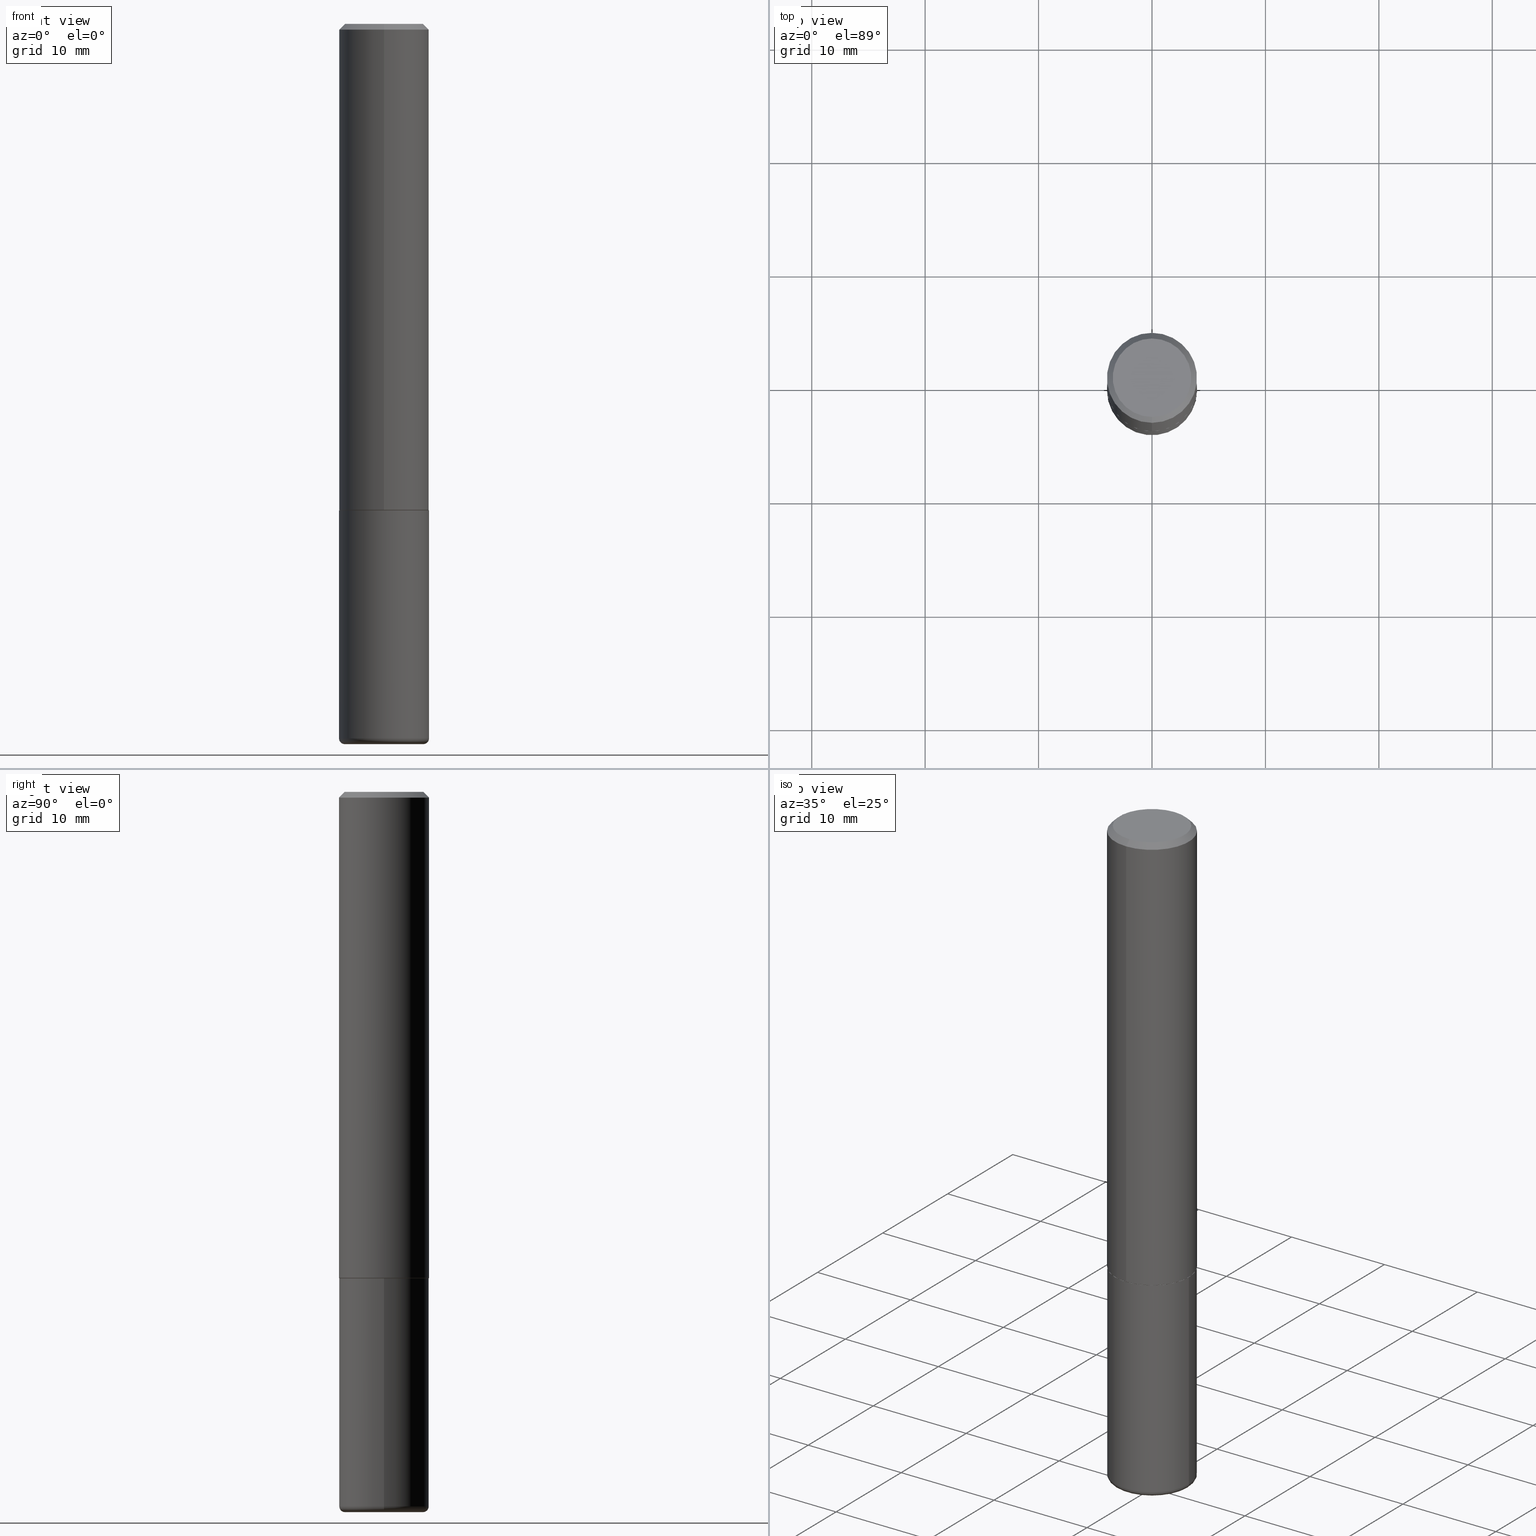
[diagram: canonical four-view strip — front | top / right | iso, engineering-drawing reading convention]
A machine part, canonical four-view strip (front | top / right | iso — engineering-drawing reading convention). The complete STEP part file that produces these views, byte-faithful:
ISO-10303-21;
HEADER;
FILE_DESCRIPTION (( 'STEP AP203' ),
    '1' );
FILE_NAME ('38234.STEP',
    '2024-03-02T19:08:51',
    ( '' ),
    ( '' ),
    'SwSTEP 2.0',
    'SolidWorks 2023',
    '' );
FILE_SCHEMA (( 'CONFIG_CONTROL_DESIGN' ));
ENDSEC;

DATA;
#1 = FACE_OUTER_BOUND ( 'NONE', #315, .T. ) ;
#2 = EDGE_LOOP ( 'NONE', ( #241, #69, #174, #156 ) ) ;
#3 = EDGE_CURVE ( 'NONE', #94, #356, #109, .T. ) ;
#4 = CIRCLE ( 'NONE', #16, 0.1552499999999999991 ) ;
#5 = APPROVAL_PERSON_ORGANIZATION ( #172, #197, #403 ) ;
#6 = CARTESIAN_POINT ( 'NONE',  ( 0.000000000000000000, 0.000000000000000000, 0.000000000000000000 ) ) ;
#7 = CARTESIAN_POINT ( 'NONE',  ( 1.250383974604437494E-45, -1.785836401521438243E-31, -5.113950281278734949E-17 ) ) ;
#8 = PERSON_AND_ORGANIZATION ( #351, #184 ) ;
#9 = DIRECTION ( 'NONE',  ( -2.445045230849958565E-29, 3.492087922831532098E-15, 1.000000000000000000 ) ) ;
#10 = CARTESIAN_POINT ( 'NONE',  ( 4.127951344840510809E-29, -5.893620499967230340E-15, -1.688000000000000167 ) ) ;
#11 = ORIENTED_EDGE ( 'NONE', *, *, #188, .T. ) ;
#12 = ADVANCED_FACE ( 'NONE', ( #300 ), #165, .T. ) ;
#13 = CARTESIAN_POINT ( 'NONE',  ( 4.890090461699924977E-31, -6.984175845663074797E-17, -0.02000000000000003511 ) ) ;
#14 = CARTESIAN_POINT ( 'NONE',  ( 1.250383974604437494E-45, -1.785836401521438243E-31, -5.113950281278734949E-17 ) ) ;
#15 = ORIENTED_EDGE ( 'NONE', *, *, #201, .F. ) ;
#16 = AXIS2_PLACEMENT_3D ( 'NONE', #229, #100, #228 ) ;
#17 = DIRECTION ( 'NONE',  ( -6.982962677686265922E-15, -1.000000000000000000, 3.496765431890251792E-15 ) ) ;
#18 = DIRECTION ( 'NONE',  ( -2.445045230849958565E-29, 3.492087922831531704E-15, 1.000000000000000000 ) ) ;
#19 = MANIFOLD_SOLID_BREP ( 'Body-Move/Copy2[2]', #402 ) ;
#20 = ORIENTED_EDGE ( 'NONE', *, *, #313, .F. ) ;
#21 = DESIGN_CONTEXT ( 'detailed design', #251, 'design' ) ;
#22 = DIRECTION ( 'NONE',  ( 2.438088387897960049E-29, -3.491481338843145188E-15, -1.000000000000000000 ) ) ;
#23 = DIRECTION ( 'NONE',  ( 0.000000000000000000, 0.000000000000000000, 1.000000000000000000 ) ) ;
#24 = CARTESIAN_POINT ( 'NONE',  ( -0.1562500000000000833, -7.548650695705845104E-15, -2.480000000000000426 ) ) ;
#25 = FACE_OUTER_BOUND ( 'NONE', #322, .T. ) ;
#26 = EDGE_CURVE ( 'NONE', #134, #170, #325, .T. ) ;
#27 = CC_DESIGN_APPROVAL ( #197, ( #63 ) ) ;
#28 = DIRECTION ( 'NONE',  ( 6.982962677686265133E-15, 1.000000000000000000, -3.496765431890256920E-15 ) ) ;
#29 = EDGE_CURVE ( 'NONE', #343, #134, #378, .T. ) ;
#30 = EDGE_LOOP ( 'NONE', ( #101, #66 ) ) ;
#31 = COORDINATED_UNIVERSAL_TIME_OFFSET ( 5, 0, .BEHIND. ) ;
#32 = DIRECTION ( 'NONE',  ( -2.445045230849958565E-29, 3.492087922831531704E-15, 1.000000000000000000 ) ) ;
#33 = AXIS2_PLACEMENT_3D ( 'NONE', #107, #70, #259 ) ;
#34 = ORIENTED_EDGE ( 'NONE', *, *, #86, .T. ) ;
#35 = PRODUCT_DEFINITION ( 'UNKNOWN', '', #63, #21 ) ;
#36 = PLANE ( 'NONE',  #71 ) ;
#37 = VECTOR ( 'NONE', #339, 39.37007874015748143 ) ;
#38 = APPLICATION_CONTEXT ( 'configuration controlled 3d designs of mechanical parts and assemblies' ) ;
#39 = ADVANCED_FACE ( 'NONE', ( #56 ), #110, .T. ) ;
#40 = VECTOR ( 'NONE', #149, 39.37007874015748143 ) ;
#41 = AXIS2_PLACEMENT_3D ( 'NONE', #14, #124, #375 ) ;
#42 = CALENDAR_DATE ( 2024, 2, 3 ) ;
#43 = CARTESIAN_POINT ( 'NONE',  ( 1.110223024625157132E-15, 0.1562500000000001110, -5.456387379424272725E-16 ) ) ;
#44 = PLANE ( 'NONE',  #278 ) ;
#45 = EDGE_LOOP ( 'NONE', ( #11, #319, #53, #83 ) ) ;
#46 = EDGE_CURVE ( 'NONE', #170, #134, #310, .T. ) ;
#47 = APPLICATION_PROTOCOL_DEFINITION ( 'international standard', 'config_control_design', 1994, #38 ) ;
#48 = CARTESIAN_POINT ( 'NONE',  ( -1.084104955710751547E-15, -0.1552500000000059110, -1.687999999999999501 ) ) ;
#49 = DIRECTION ( 'NONE',  ( 1.000000000000000000, -6.982962677686269077E-15, 0.000000000000000000 ) ) ;
#50 = DIRECTION ( 'NONE',  ( 1.000000000000000000, -6.982962677686262766E-15, 0.000000000000000000 ) ) ;
#51 = EDGE_CURVE ( 'NONE', #354, #94, #130, .T. ) ;
#52 = DIRECTION ( 'NONE',  ( -1.000000000000000000, 6.982962677686265922E-15, -4.876176775795935793E-29 ) ) ;
#53 = ORIENTED_EDGE ( 'NONE', *, *, #51, .F. ) ;
#54 = AXIS2_PLACEMENT_3D ( 'NONE', #335, #304, #17 ) ;
#55 = MECHANICAL_CONTEXT ( 'NONE', #38, 'mechanical' ) ;
#56 = FACE_OUTER_BOUND ( 'NONE', #160, .T. ) ;
#57 = DIRECTION ( 'NONE',  ( -2.445045230849958565E-29, 3.492087922831531704E-15, 1.000000000000000000 ) ) ;
#58 = ORIENTED_EDGE ( 'NONE', *, *, #201, .T. ) ;
#59 = PERSON_AND_ORGANIZATION ( #351, #184 ) ;
#60 = DIRECTION ( 'NONE',  ( -6.982962677686265922E-15, -1.000000000000000000, 3.496765431890251792E-15 ) ) ;
#61 = EDGE_LOOP ( 'NONE', ( #274, #279 ) ) ;
#62 = COORDINATED_UNIVERSAL_TIME_OFFSET ( 5, 0, .BEHIND. ) ;
#63 = PRODUCT_DEFINITION_FORMATION_WITH_SPECIFIED_SOURCE ( 'ANY', '', #357, .NOT_KNOWN. ) ;
#64 =( NAMED_UNIT ( * ) SI_UNIT ( $, .STERADIAN. ) SOLID_ANGLE_UNIT ( ) );
#65 = FACE_OUTER_BOUND ( 'NONE', #377, .T. ) ;
#66 = ORIENTED_EDGE ( 'NONE', *, *, #373, .F. ) ;
#67 = ORIENTED_EDGE ( 'NONE', *, *, #347, .T. ) ;
#68 = FACE_OUTER_BOUND ( 'NONE', #45, .T. ) ;
#69 = ORIENTED_EDGE ( 'NONE', *, *, #26, .T. ) ;
#70 = DIRECTION ( 'NONE',  ( -2.445468806185136597E-29, 3.491481338843145583E-15, 1.000000000000000000 ) ) ;
#71 = AXIS2_PLACEMENT_3D ( 'NONE', #272, #161, #265 ) ;
#72 = CC_DESIGN_PERSON_AND_ORGANIZATION_ASSIGNMENT ( #154, #247, ( #63 ) ) ;
#73 = AXIS2_PLACEMENT_3D ( 'NONE', #93, #393, #28 ) ;
#74 = CIRCLE ( 'NONE', #41, 0.1362500000000000933 ) ;
#75 = PRODUCT_DEFINITION_SHAPE ( 'NONE', 'NONE',  #35 ) ;
#76 = EDGE_CURVE ( 'NONE', #170, #418, #408, .T. ) ;
#77 = CARTESIAN_POINT ( 'NONE',  ( 4.127236349674729842E-29, -5.894644413739625756E-15, -1.688000000000000167 ) ) ;
#78 = ADVANCED_FACE ( 'NONE', ( #168 ), #143, .T. ) ;
#79 = CONICAL_SURFACE ( 'NONE', #121, 0.1562500000000000000, 0.7853981633974468357 ) ;
#80 = LOCAL_TIME ( 14, 8, 51.00000000000000000, #62 ) ;
#81 = LINE ( 'NONE', #48, #289 ) ;
#82 = CARTESIAN_POINT ( 'NONE',  ( 4.127951344840510809E-29, -5.893620499967230340E-15, -1.688000000000000167 ) ) ;
#83 = ORIENTED_EDGE ( 'NONE', *, *, #116, .F. ) ;
#84 = CALENDAR_DATE ( 2024, 2, 3 ) ;
#85 = DIRECTION ( 'NONE',  ( -2.445468806185136597E-29, 3.491481338843145583E-15, 1.000000000000000000 ) ) ;
#86 = EDGE_CURVE ( 'NONE', #354, #205, #404, .T. ) ;
#87 = DIRECTION ( 'NONE',  ( 7.105427357601001859E-15, 1.000000000000000000, -3.491481338843145583E-15 ) ) ;
#88 = VECTOR ( 'NONE', #9, 39.37007874015748143 ) ;
#89 = DIRECTION ( 'NONE',  ( -2.445045230849958565E-29, 3.492087922831531704E-15, 1.000000000000000000 ) ) ;
#90 =( LENGTH_UNIT ( ) NAMED_UNIT ( * ) SI_UNIT ( $, .METRE. ) );
#91 = DIRECTION ( 'NONE',  ( 1.000000000000000000, -6.982962677686266711E-15, 4.876176775795936353E-29 ) ) ;
#92 = CALENDAR_DATE ( 2024, 2, 3 ) ;
#93 = CARTESIAN_POINT ( 'NONE',  ( 4.890090461699924977E-31, -6.984175845663074797E-17, -0.02000000000000003511 ) ) ;
#94 = VERTEX_POINT ( 'NONE', #398 ) ;
#95 =( NAMED_UNIT ( * ) PLANE_ANGLE_UNIT ( ) SI_UNIT ( $, .RADIAN. ) );
#96 = ORIENTED_EDGE ( 'NONE', *, *, #180, .T. ) ;
#97 = ADVANCED_FACE ( 'NONE', ( #214 ), #366, .F. ) ;
#98 = CALENDAR_DATE ( 2024, 2, 3 ) ;
#99 = AXIS2_PLACEMENT_3D ( 'NONE', #117, #242, #374 ) ;
#100 = DIRECTION ( 'NONE',  ( -2.445045230849958565E-29, 3.492087922831531704E-15, 1.000000000000000000 ) ) ;
#101 = ORIENTED_EDGE ( 'NONE', *, *, #347, .F. ) ;
#102 = CARTESIAN_POINT ( 'NONE',  ( 0.1562500000000000833, -9.749961638719480029E-15, -2.480000000000000426 ) ) ;
#103 = CYLINDRICAL_SURFACE ( 'NONE', #291, 0.1562500000000000000 ) ;
#104 = EDGE_CURVE ( 'NONE', #205, #356, #183, .T. ) ;
#105 = VECTOR ( 'NONE', #257, 39.37007874015748143 ) ;
#106 = CC_DESIGN_SECURITY_CLASSIFICATION ( #379, ( #63 ) ) ;
#107 = CARTESIAN_POINT ( 'NONE',  ( 6.064762639339139522E-29, -8.658873720331001644E-15, -2.480000000000000426 ) ) ;
#108 = EDGE_CURVE ( 'NONE', #367, #125, #176, .T. ) ;
#109 = LINE ( 'NONE', #43, #37 ) ;
#110 = CYLINDRICAL_SURFACE ( 'NONE', #224, 0.1562500000000000000 ) ;
#111 = ORIENTED_EDGE ( 'NONE', *, *, #193, .T. ) ;
#112 = CONICAL_SURFACE ( 'NONE', #391, 0.1552499999999999991, 0.7853981633975165577 ) ;
#113 = DIRECTION ( 'NONE',  ( -2.445468806185136877E-29, 3.491481338843145188E-15, 1.000000000000000000 ) ) ;
#114 = CARTESIAN_POINT ( 'NONE',  ( 1.106670310946397846E-15, 0.1552499999999940872, -1.688000000000000611 ) ) ;
#115 = VERTEX_POINT ( 'NONE', #370 ) ;
#116 = EDGE_CURVE ( 'NONE', #132, #354, #81, .T. ) ;
#117 = CARTESIAN_POINT ( 'NONE',  ( 6.064762639339139522E-29, -8.658873720331001644E-15, -2.480000000000000426 ) ) ;
#118 = DIRECTION ( 'NONE',  ( 2.438088387897960049E-29, -3.491481338843145188E-15, -1.000000000000000000 ) ) ;
#119 = CARTESIAN_POINT ( 'NONE',  ( 0.000000000000000000, 0.000000000000000000, 0.000000000000000000 ) ) ;
#120 = DIRECTION ( 'NONE',  ( -2.445468806185136877E-29, 3.491481338843145188E-15, 1.000000000000000000 ) ) ;
#121 = AXIS2_PLACEMENT_3D ( 'NONE', #305, #220, #294 ) ;
#122 = PERSON_AND_ORGANIZATION ( #351, #184 ) ;
#123 = LINE ( 'NONE', #317, #105 ) ;
#124 = DIRECTION ( 'NONE',  ( -2.445045230849958565E-29, 3.492087922831531704E-15, 1.000000000000000000 ) ) ;
#125 = VERTEX_POINT ( 'NONE', #297 ) ;
#126 = CARTESIAN_POINT ( 'NONE',  ( 0.1362500000000000100, -9.610302385165756588E-15, -2.480000000000000426 ) ) ;
#127 = EDGE_CURVE ( 'NONE', #356, #205, #233, .T. ) ;
#128 = ORIENTED_EDGE ( 'NONE', *, *, #104, .T. ) ;
#129 = ORIENTED_EDGE ( 'NONE', *, *, #127, .F. ) ;
#130 = CIRCLE ( 'NONE', #54, 0.1562500000000002220 ) ;
#131 = AXIS2_PLACEMENT_3D ( 'NONE', #210, #18, #148 ) ;
#132 = VERTEX_POINT ( 'NONE', #306 ) ;
#133 = DIRECTION ( 'NONE',  ( -2.445045230849958565E-29, 3.492087922831531704E-15, 1.000000000000000000 ) ) ;
#134 = VERTEX_POINT ( 'NONE', #24 ) ;
#135 = DIMENSIONAL_EXPONENTS ( 1.000000000000000000, 0.000000000000000000, 0.000000000000000000, 0.000000000000000000, 0.000000000000000000, 0.000000000000000000, 0.000000000000000000 ) ;
#136 = EDGE_CURVE ( 'NONE', #367, #205, #123, .T. ) ;
#137 = ADVANCED_FACE ( 'NONE', ( #68 ), #112, .T. ) ;
#138 = PERSON_AND_ORGANIZATION_ROLE ( 'creator' ) ;
#139 = DIRECTION ( 'NONE',  ( -6.982962677686265922E-15, -1.000000000000000000, 3.492087922831532098E-15 ) ) ;
#140 = ADVANCED_FACE ( 'NONE', ( #181 ), #152, .T. ) ;
#141 = ORIENTED_EDGE ( 'NONE', *, *, #51, .T. ) ;
#142 = DATE_AND_TIME ( #42, #417 ) ;
#143 = CYLINDRICAL_SURFACE ( 'NONE', #349, 0.1562500000000001110 ) ;
#144 = CARTESIAN_POINT ( 'NONE',  ( -0.1562500000000000000, 1.110223024625156540E-15, -7.685836078523291160E-30 ) ) ;
#145 = CLOSED_SHELL ( 'NONE', ( #39, #12, #396, #232, #216, #286 ) ) ;
#146 = LOCAL_TIME ( 14, 8, 51.00000000000000000, #31 ) ;
#147 = DIRECTION ( 'NONE',  ( -1.000000000000000000, 7.105427357601014480E-15, 0.000000000000000000 ) ) ;
#148 = DIRECTION ( 'NONE',  ( -6.982962677686265922E-15, -1.000000000000000000, 3.519288880726909138E-15 ) ) ;
#149 = DIRECTION ( 'NONE',  ( 5.024295867788404755E-15, 0.7071067811865981989, 0.7071067811864968355 ) ) ;
#150 = DIRECTION ( 'NONE',  ( -2.445045230849957724E-29, 3.492087922831532098E-15, 1.000000000000000000 ) ) ;
#151 = DIRECTION ( 'NONE',  ( 1.000000000000000000, -6.982962677686273021E-15, 0.000000000000000000 ) ) ;
#152 = CONICAL_SURFACE ( 'NONE', #73, 0.1562500000000000000, 0.7853981633974468357 ) ;
#153 = CC_DESIGN_PERSON_AND_ORGANIZATION_ASSIGNMENT ( #8, #138, ( #35 ) ) ;
#154 = PERSON_AND_ORGANIZATION ( #351, #184 ) ;
#155 =( CONVERSION_BASED_UNIT ( 'INCH', #309 ) LENGTH_UNIT ( ) NAMED_UNIT ( #135 ) );
#156 = ORIENTED_EDGE ( 'NONE', *, *, #364, .F. ) ;
#157 = ORIENTED_EDGE ( 'NONE', *, *, #188, .F. ) ;
#158 = CC_DESIGN_APPROVAL ( #225, ( #379 ) ) ;
#159 = DIRECTION ( 'NONE',  ( -6.982962677686265922E-15, -1.000000000000000000, 3.519288880726909138E-15 ) ) ;
#160 = EDGE_LOOP ( 'NONE', ( #372, #406, #217, #386 ) ) ;
#161 = DIRECTION ( 'NONE',  ( 2.445045230849957724E-29, -3.492087922831532098E-15, -1.000000000000000000 ) ) ;
#162 = ADVANCED_FACE ( 'NONE', ( #1 ), #284, .T. ) ;
#163 = AXIS2_PLACEMENT_3D ( 'NONE', #308, #133, #258 ) ;
#164 = ORIENTED_EDGE ( 'NONE', *, *, #221, .F. ) ;
#165 = TOROIDAL_SURFACE ( 'NONE', #99, 0.1362500000000000100, 0.02000000000000016348 ) ;
#166 = CIRCLE ( 'NONE', #338, 0.1362500000000000100 ) ;
#167 = APPROVAL_DATE_TIME ( #142, #293 ) ;
#168 = FACE_OUTER_BOUND ( 'NONE', #223, .T. ) ;
#169 = CARTESIAN_POINT ( 'NONE',  ( 4.127951344840510809E-29, -5.893620499967230340E-15, -1.688000000000000167 ) ) ;
#170 = VERTEX_POINT ( 'NONE', #102 ) ;
#171 = CC_DESIGN_PERSON_AND_ORGANIZATION_ASSIGNMENT ( #122, #314, ( #63 ) ) ;
#172 = PERSON_AND_ORGANIZATION ( #351, #184 ) ;
#173 = DIRECTION ( 'NONE',  ( -4.937700262164884886E-15, -0.7071067811865933139, 0.7071067811865017205 ) ) ;
#174 = ORIENTED_EDGE ( 'NONE', *, *, #76, .T. ) ;
#175 = DIRECTION ( 'NONE',  ( -2.445468806185136597E-29, 3.491481338843145583E-15, 1.000000000000000000 ) ) ;
#176 = CIRCLE ( 'NONE', #412, 0.1362500000000000933 ) ;
#177 = APPROVAL_PERSON_ORGANIZATION ( #340, #293, #365 ) ;
#178 = DIRECTION ( 'NONE',  ( -2.445468806185136597E-29, 3.491481338843145583E-15, 1.000000000000000000 ) ) ;
#179 = CARTESIAN_POINT ( 'NONE',  ( -1.003347832174086278E-15, -0.1362500000000000933, 4.246574766730091504E-16 ) ) ;
#180 = EDGE_CURVE ( 'NONE', #94, #354, #416, .T. ) ;
#181 = FACE_OUTER_BOUND ( 'NONE', #250, .T. ) ;
#182 = ORIENTED_EDGE ( 'NONE', *, *, #263, .T. ) ;
#183 = CIRCLE ( 'NONE', #362, 0.1562500000000000000 ) ;
#184 = ORGANIZATION ( 'UNSPECIFIED', 'UNSPECIFIED', '' ) ;
#185 = DATE_TIME_ROLE ( 'classification_date' ) ;
#186 = CARTESIAN_POINT ( 'NONE',  ( 0.000000000000000000, 0.000000000000000000, 0.000000000000000000 ) ) ;
#187 = DIRECTION ( 'NONE',  ( -2.445045230849958565E-29, 3.492087922831531704E-15, 1.000000000000000000 ) ) ;
#188 = EDGE_CURVE ( 'NONE', #132, #285, #196, .T. ) ;
#189 = ADVANCED_BREP_SHAPE_REPRESENTATION ( '38234', ( #303, #19, #363 ), #361 ) ;
#190 = CIRCLE ( 'NONE', #195, 0.02000000000000016348 ) ;
#191 = AXIS2_PLACEMENT_3D ( 'NONE', #276, #273, #151 ) ;
#192 = ORIENTED_EDGE ( 'NONE', *, *, #313, .T. ) ;
#193 = EDGE_CURVE ( 'NONE', #115, #170, #190, .T. ) ;
#194 = EDGE_LOOP ( 'NONE', ( #67, #270, #295, #311 ) ) ;
#195 = AXIS2_PLACEMENT_3D ( 'NONE', #126, #252, #394 ) ;
#196 = CIRCLE ( 'NONE', #163, 0.1552499999999999991 ) ;
#197 = APPROVAL ( #271, 'UNSPECIFIED' ) ;
#198 = ORIENTED_EDGE ( 'NONE', *, *, #86, .F. ) ;
#199 = CARTESIAN_POINT ( 'NONE',  ( 6.064762639339139522E-29, -8.658873720331001644E-15, -2.480000000000000426 ) ) ;
#200 = AXIS2_PLACEMENT_3D ( 'NONE', #82, #85, #245 ) ;
#201 = EDGE_CURVE ( 'NONE', #285, #132, #4, .T. ) ;
#202 = DATE_AND_TIME ( #369, #234 ) ;
#203 = DIRECTION ( 'NONE',  ( 1.000000000000000000, -6.982962677686266711E-15, 4.876176775795936353E-29 ) ) ;
#204 = FACE_OUTER_BOUND ( 'NONE', #30, .T. ) ;
#205 = VERTEX_POINT ( 'NONE', #387 ) ;
#206 = DIRECTION ( 'NONE',  ( -2.445468806185136597E-29, 3.491481338843145583E-15, 1.000000000000000000 ) ) ;
#207 = DIRECTION ( 'NONE',  ( -2.445468806185136597E-29, 3.491481338843145583E-15, 1.000000000000000000 ) ) ;
#208 = ORIENTED_EDGE ( 'NONE', *, *, #104, .F. ) ;
#209 = PERSON_AND_ORGANIZATION_ROLE ( 'design_owner' ) ;
#210 = CARTESIAN_POINT ( 'NONE',  ( 4.127236349674729842E-29, -5.894644413739625756E-15, -1.688000000000000167 ) ) ;
#211 = AXIS2_PLACEMENT_3D ( 'NONE', #390, #187, #60 ) ;
#212 = VECTOR ( 'NONE', #120, 39.37007874015748143 ) ;
#213 = PERSON_AND_ORGANIZATION ( #351, #184 ) ;
#214 = FACE_OUTER_BOUND ( 'NONE', #350, .T. ) ;
#215 = CARTESIAN_POINT ( 'NONE',  ( -8.868390233884125479E-30, -1.875383359908681760E-14, -2.500000000000000000 ) ) ;
#216 = ADVANCED_FACE ( 'NONE', ( #254 ), #256, .T. ) ;
#217 = ORIENTED_EDGE ( 'NONE', *, *, #288, .F. ) ;
#218 = PERSON_AND_ORGANIZATION ( #351, #184 ) ;
#219 = DIRECTION ( 'NONE',  ( -2.445045230849958565E-29, 3.492087922831531704E-15, 1.000000000000000000 ) ) ;
#220 = DIRECTION ( 'NONE',  ( 2.445045230849958565E-29, -3.492087922831531704E-15, -1.000000000000000000 ) ) ;
#221 = EDGE_CURVE ( 'NONE', #285, #94, #358, .T. ) ;
#222 = PERSON_AND_ORGANIZATION_ROLE ( 'classification_officer' ) ;
#223 = EDGE_LOOP ( 'NONE', ( #359, #96, #34, #129 ) ) ;
#224 = AXIS2_PLACEMENT_3D ( 'NONE', #399, #178, #203 ) ;
#225 = APPROVAL ( #389, 'UNSPECIFIED' ) ;
#226 = DATE_AND_TIME ( #98, #80 ) ;
#227 = ORIENTED_EDGE ( 'NONE', *, *, #127, .T. ) ;
#228 = DIRECTION ( 'NONE',  ( -6.982962677686265922E-15, -1.000000000000000000, 3.519288880726909138E-15 ) ) ;
#229 = CARTESIAN_POINT ( 'NONE',  ( 4.127236349674729842E-29, -5.894644413739625756E-15, -1.688000000000000167 ) ) ;
#230 = AXIS2_PLACEMENT_3D ( 'NONE', #341, #87, #147 ) ;
#231 = SHAPE_DEFINITION_REPRESENTATION ( #75, #189 ) ;
#232 = ADVANCED_FACE ( 'NONE', ( #318 ), #103, .T. ) ;
#233 = CIRCLE ( 'NONE', #282, 0.1562500000000000000 ) ;
#234 = LOCAL_TIME ( 14, 8, 51.00000000000000000, #266 ) ;
#235 = DIRECTION ( 'NONE',  ( 1.000000000000000000, -6.982962677686262766E-15, 0.000000000000000000 ) ) ;
#236 = AXIS2_PLACEMENT_3D ( 'NONE', #77, #150, #139 ) ;
#237 = CARTESIAN_POINT ( 'NONE',  ( 0.1562500000000000000, -1.091087918388479174E-15, 7.619026212181150377E-30 ) ) ;
#238 = CARTESIAN_POINT ( 'NONE',  ( 1.091087918388479568E-15, 0.1562499999999999445, -0.02000000000000057981 ) ) ;
#239 = COORDINATED_UNIVERSAL_TIME_OFFSET ( 5, 0, .BEHIND. ) ;
#240 = DIRECTION ( 'NONE',  ( -1.000000000000000000, 6.982962677686265922E-15, -4.876176775795935793E-29 ) ) ;
#241 = ORIENTED_EDGE ( 'NONE', *, *, #329, .F. ) ;
#242 = DIRECTION ( 'NONE',  ( -2.445468806185136597E-29, 3.491481338843145583E-15, 1.000000000000000000 ) ) ;
#243 = ORIENTED_EDGE ( 'NONE', *, *, #116, .T. ) ;
#244 = ADVANCED_FACE ( 'NONE', ( #65 ), #36, .F. ) ;
#245 = DIRECTION ( 'NONE',  ( 1.000000000000000000, -6.982962677686269077E-15, 0.000000000000000000 ) ) ;
#246 = APPROVAL_PERSON_ORGANIZATION ( #59, #225, #348 ) ;
#247 = PERSON_AND_ORGANIZATION_ROLE ( 'design_supplier' ) ;
#248 = CARTESIAN_POINT ( 'NONE',  ( 4.127236349674729842E-29, -5.894644413739625756E-15, -1.688000000000000167 ) ) ;
#249 = CARTESIAN_POINT ( 'NONE',  ( -1.091087918388439336E-15, -0.1562500000000061062, -1.686999999999999611 ) ) ;
#250 = EDGE_LOOP ( 'NONE', ( #333, #20, #182, #227 ) ) ;
#251 = APPLICATION_CONTEXT ( 'configuration controlled 3d designs of mechanical parts and assemblies' ) ;
#252 = DIRECTION ( 'NONE',  ( -6.982962677686266711E-15, -1.000000000000000000, 3.491481338843145583E-15 ) ) ;
#253 = EDGE_LOOP ( 'NONE', ( #281, #287, #128, #401 ) ) ;
#254 = FACE_OUTER_BOUND ( 'NONE', #302, .T. ) ;
#255 = ORIENTED_EDGE ( 'NONE', *, *, #29, .F. ) ;
#256 = TOROIDAL_SURFACE ( 'NONE', #33, 0.1362500000000000100, 0.02000000000000016348 ) ;
#257 = DIRECTION ( 'NONE',  ( -4.851104656540956386E-15, -0.7071067811865489050, -0.7071067811865461294 ) ) ;
#258 = DIRECTION ( 'NONE',  ( -6.982962677686265922E-15, -1.000000000000000000, 3.519288880726909138E-15 ) ) ;
#259 = DIRECTION ( 'NONE',  ( 1.000000000000000000, -6.982962677686267499E-15, 4.883557194083113462E-29 ) ) ;
#260 = CIRCLE ( 'NONE', #352, 0.1562500000000000000 ) ;
#261 = LOCAL_TIME ( 14, 8, 51.00000000000000000, #239 ) ;
#262 = AXIS2_PLACEMENT_3D ( 'NONE', #199, #206, #50 ) ;
#263 = EDGE_CURVE ( 'NONE', #125, #356, #405, .T. ) ;
#264 = CARTESIAN_POINT ( 'NONE',  ( -1.091087918388479765E-15, -0.1562500000000001110, 5.456387379424272725E-16 ) ) ;
#265 = DIRECTION ( 'NONE',  ( 6.982962677686265922E-15, 1.000000000000000000, -3.492087922831532098E-15 ) ) ;
#266 = COORDINATED_UNIVERSAL_TIME_OFFSET ( 5, 0, .BEHIND. ) ;
#267 = CC_DESIGN_DATE_AND_TIME_ASSIGNMENT ( #202, #330, ( #35 ) ) ;
#268 = DIRECTION ( 'NONE',  ( -6.982962677686265922E-15, -1.000000000000000000, 3.492087922831531704E-15 ) ) ;
#269 = CARTESIAN_POINT ( 'NONE',  ( -0.1362500000000000100, -7.654619782670286835E-15, -2.500000000000000444 ) ) ;
#270 = ORIENTED_EDGE ( 'NONE', *, *, #29, .T. ) ;
#271 = APPROVAL_STATUS ( 'not_yet_approved' ) ;
#272 = CARTESIAN_POINT ( 'NONE',  ( 9.514286648347543521E-16, 0.1362500000000000933, -5.013667308921901438E-16 ) ) ;
#273 = DIRECTION ( 'NONE',  ( -2.445468806185136597E-29, 3.491481338843145583E-15, 1.000000000000000000 ) ) ;
#274 = ORIENTED_EDGE ( 'NONE', *, *, #288, .T. ) ;
#275 = ADVANCED_FACE ( 'NONE', ( #385 ), #79, .T. ) ;
#276 = CARTESIAN_POINT ( 'NONE',  ( 6.113672015462842613E-29, -8.728703347107866520E-15, -2.500000000000000444 ) ) ;
#277 = VECTOR ( 'NONE', #113, 39.37007874015748143 ) ;
#278 = AXIS2_PLACEMENT_3D ( 'NONE', #169, #118, #52 ) ;
#279 = ORIENTED_EDGE ( 'NONE', *, *, #364, .T. ) ;
#280 = ORIENTED_EDGE ( 'NONE', *, *, #373, .T. ) ;
#281 = ORIENTED_EDGE ( 'NONE', *, *, #108, .F. ) ;
#282 = AXIS2_PLACEMENT_3D ( 'NONE', #13, #32, #415 ) ;
#283 = CC_DESIGN_APPROVAL ( #293, ( #35 ) ) ;
#284 = CYLINDRICAL_SURFACE ( 'NONE', #397, 0.1562500000000001110 ) ;
#285 = VERTEX_POINT ( 'NONE', #114 ) ;
#286 = ADVANCED_FACE ( 'NONE', ( #204 ), #301, .T. ) ;
#287 = ORIENTED_EDGE ( 'NONE', *, *, #136, .T. ) ;
#288 = EDGE_CURVE ( 'NONE', #418, #346, #260, .T. ) ;
#289 = VECTOR ( 'NONE', #173, 39.37007874015748143 ) ;
#290 = CC_DESIGN_PERSON_AND_ORGANIZATION_ASSIGNMENT ( #213, #209, ( #357 ) ) ;
#291 = AXIS2_PLACEMENT_3D ( 'NONE', #186, #323, #91 ) ;
#292 = DIRECTION ( 'NONE',  ( -6.982962677686265133E-15, -1.000000000000000000, 3.496765431890256920E-15 ) ) ;
#293 = APPROVAL ( #299, 'UNSPECIFIED' ) ;
#294 = DIRECTION ( 'NONE',  ( 6.982962677686265133E-15, 1.000000000000000000, -3.496765431890256920E-15 ) ) ;
#295 = ORIENTED_EDGE ( 'NONE', *, *, #46, .F. ) ;
#296 = DIRECTION ( 'NONE',  ( 1.000000000000000000, 0.000000000000000000, 0.000000000000000000 ) ) ;
#297 = CARTESIAN_POINT ( 'NONE',  ( 1.021258291611616861E-15, 0.1362500000000000933, -5.269364822985837754E-16 ) ) ;
#298 = DIRECTION ( 'NONE',  ( 4.937700262164540154E-15, 0.7071067811865440200, -0.7071067811865510144 ) ) ;
#299 = APPROVAL_STATUS ( 'not_yet_approved' ) ;
#300 = FACE_OUTER_BOUND ( 'NONE', #194, .T. ) ;
#301 = PLANE ( 'NONE',  #360 ) ;
#302 = EDGE_LOOP ( 'NONE', ( #255, #280, #111, #413 ) ) ;
#303 = MANIFOLD_SOLID_BREP ( 'Body-Move/Copy2[1]', #145 ) ;
#304 = DIRECTION ( 'NONE',  ( -2.445045230849958565E-29, 3.492087922831531704E-15, 1.000000000000000000 ) ) ;
#305 = CARTESIAN_POINT ( 'NONE',  ( 4.890090461699924977E-31, -6.984175845663074797E-17, -0.02000000000000003511 ) ) ;
#306 = CARTESIAN_POINT ( 'NONE',  ( -1.084104955710751547E-15, -0.1552500000000059110, -1.687999999999999501 ) ) ;
#307 = DIRECTION ( 'NONE',  ( -2.445468806185136597E-29, 3.491481338843145583E-15, 1.000000000000000000 ) ) ;
#308 = CARTESIAN_POINT ( 'NONE',  ( 4.127236349674729842E-29, -5.894644413739625756E-15, -1.688000000000000167 ) ) ;
#309 = LENGTH_MEASURE_WITH_UNIT ( LENGTH_MEASURE( 0.02539999999999999897 ), #90 );
#310 = CIRCLE ( 'NONE', #368, 0.1562500000000000000 ) ;
#311 = ORIENTED_EDGE ( 'NONE', *, *, #193, .F. ) ;
#312 = CIRCLE ( 'NONE', #200, 0.1562500000000000000 ) ;
#313 = EDGE_CURVE ( 'NONE', #125, #367, #74, .T. ) ;
#314 = PERSON_AND_ORGANIZATION_ROLE ( 'creator' ) ;
#315 = EDGE_LOOP ( 'NONE', ( #141, #392, #208, #198 ) ) ;
#316 = DATE_AND_TIME ( #84, #261 ) ;
#317 = CARTESIAN_POINT ( 'NONE',  ( -1.071952812151801215E-15, -0.1562500000000000833, -0.01999999999999948694 ) ) ;
#318 = FACE_OUTER_BOUND ( 'NONE', #2, .T. ) ;
#319 = ORIENTED_EDGE ( 'NONE', *, *, #221, .T. ) ;
#320 = UNCERTAINTY_MEASURE_WITH_UNIT (LENGTH_MEASURE( 1.000000000000000082E-05 ), #155, 'distance_accuracy_value', 'NONE');
#321 = CIRCLE ( 'NONE', #191, 0.1362500000000000100 ) ;
#322 = EDGE_LOOP ( 'NONE', ( #164, #58, #243, #337 ) ) ;
#323 = DIRECTION ( 'NONE',  ( -2.445468806185136597E-29, 3.491481338843145583E-15, 1.000000000000000000 ) ) ;
#324 = CC_DESIGN_PERSON_AND_ORGANIZATION_ASSIGNMENT ( #218, #222, ( #379 ) ) ;
#325 = CIRCLE ( 'NONE', #262, 0.1562500000000000000 ) ;
#326 = CONICAL_SURFACE ( 'NONE', #131, 0.1552499999999999991, 0.7853981633975165577 ) ;
#327 = COORDINATED_UNIVERSAL_TIME_OFFSET ( 5, 0, .BEHIND. ) ;
#328 = DIRECTION ( 'NONE',  ( -2.445045230849958565E-29, 3.492087922831531704E-15, 1.000000000000000000 ) ) ;
#329 = EDGE_CURVE ( 'NONE', #134, #346, #342, .T. ) ;
#330 = DATE_TIME_ROLE ( 'creation_date' ) ;
#331 = CARTESIAN_POINT ( 'NONE',  ( 4.890090461699924977E-31, -6.984175845663074797E-17, -0.02000000000000003511 ) ) ;
#332 = FACE_OUTER_BOUND ( 'NONE', #61, .T. ) ;
#333 = ORIENTED_EDGE ( 'NONE', *, *, #136, .F. ) ;
#334 = PRODUCT_RELATED_PRODUCT_CATEGORY ( 'detail', '', ( #357 ) ) ;
#335 = CARTESIAN_POINT ( 'NONE',  ( 4.124791304443880664E-29, -5.891152325816794336E-15, -1.687000000000000055 ) ) ;
#336 = DIRECTION ( 'NONE',  ( 1.000000000000000000, -6.982962677686273021E-15, 0.000000000000000000 ) ) ;
#337 = ORIENTED_EDGE ( 'NONE', *, *, #180, .F. ) ;
#338 = AXIS2_PLACEMENT_3D ( 'NONE', #409, #207, #336 ) ;
#339 = DIRECTION ( 'NONE',  ( -2.445045230849958565E-29, 3.492087922831532098E-15, 1.000000000000000000 ) ) ;
#340 = PERSON_AND_ORGANIZATION ( #351, #184 ) ;
#341 = CARTESIAN_POINT ( 'NONE',  ( -0.1362500000000000100, -7.690759242857866845E-15, -2.480000000000000426 ) ) ;
#342 = LINE ( 'NONE', #144, #212 ) ;
#343 = VERTEX_POINT ( 'NONE', #269 ) ;
#344 = DATE_AND_TIME ( #92, #146 ) ;
#345 = DIRECTION ( 'NONE',  ( -6.982962677686265922E-15, -1.000000000000000000, 3.492087922831532098E-15 ) ) ;
#346 = VERTEX_POINT ( 'NONE', #400 ) ;
#347 = EDGE_CURVE ( 'NONE', #115, #343, #321, .T. ) ;
#348 = APPROVAL_ROLE ( '' ) ;
#349 = AXIS2_PLACEMENT_3D ( 'NONE', #119, #89, #376 ) ;
#350 = EDGE_LOOP ( 'NONE', ( #157, #15 ) ) ;
#351 = PERSON ( 'UNSPECIFIED', 'UNSPECIFIED', 'UNSPECIFIED', ('UNSPECIFIED'), ('UNSPECIFIED'), ('UNSPECIFIED') ) ;
#352 = AXIS2_PLACEMENT_3D ( 'NONE', #10, #307, #49 ) ;
#353 = APPROVAL_DATE_TIME ( #226, #225 ) ;
#354 = VERTEX_POINT ( 'NONE', #249 ) ;
#355 = CC_DESIGN_DATE_AND_TIME_ASSIGNMENT ( #344, #185, ( #379 ) ) ;
#356 = VERTEX_POINT ( 'NONE', #238 ) ;
#357 = PRODUCT ( '38234', '38234', '', ( #55 ) ) ;
#358 = LINE ( 'NONE', #383, #40 ) ;
#359 = ORIENTED_EDGE ( 'NONE', *, *, #3, .F. ) ;
#360 = AXIS2_PLACEMENT_3D ( 'NONE', #215, #22, #240 ) ;
#361 =( GEOMETRIC_REPRESENTATION_CONTEXT ( 3 ) GLOBAL_UNCERTAINTY_ASSIGNED_CONTEXT ( ( #320 ) ) GLOBAL_UNIT_ASSIGNED_CONTEXT ( ( #155, #95, #64 ) ) REPRESENTATION_CONTEXT ( 'NONE', 'WORKASPACE' ) );
#362 = AXIS2_PLACEMENT_3D ( 'NONE', #331, #57, #292 ) ;
#363 = AXIS2_PLACEMENT_3D ( 'NONE', #6, #23, #296 ) ;
#364 = EDGE_CURVE ( 'NONE', #346, #418, #312, .T. ) ;
#365 = APPROVAL_ROLE ( '' ) ;
#366 = PLANE ( 'NONE',  #236 ) ;
#367 = VERTEX_POINT ( 'NONE', #179 ) ;
#368 = AXIS2_PLACEMENT_3D ( 'NONE', #380, #175, #235 ) ;
#369 = CALENDAR_DATE ( 2024, 2, 3 ) ;
#370 = CARTESIAN_POINT ( 'NONE',  ( 0.1362500000000000100, -9.680132011942621464E-15, -2.500000000000000444 ) ) ;
#371 = CARTESIAN_POINT ( 'NONE',  ( 1.091087918388479568E-15, 0.1562499999999999445, -0.02000000000000057981 ) ) ;
#372 = ORIENTED_EDGE ( 'NONE', *, *, #46, .T. ) ;
#373 = EDGE_CURVE ( 'NONE', #343, #115, #166, .T. ) ;
#374 = DIRECTION ( 'NONE',  ( 1.000000000000000000, -6.982962677686267499E-15, 4.883557194083113462E-29 ) ) ;
#375 = DIRECTION ( 'NONE',  ( -6.982962677686265922E-15, -1.000000000000000000, 3.492087922831531704E-15 ) ) ;
#376 = DIRECTION ( 'NONE',  ( -6.982962677686265922E-15, -1.000000000000000000, 3.492087922831532098E-15 ) ) ;
#377 = EDGE_LOOP ( 'NONE', ( #192, #388 ) ) ;
#378 = CIRCLE ( 'NONE', #230, 0.02000000000000016348 ) ;
#379 = SECURITY_CLASSIFICATION ( '', '', #382 ) ;
#380 = CARTESIAN_POINT ( 'NONE',  ( 6.064762639339139522E-29, -8.658873720331001644E-15, -2.480000000000000426 ) ) ;
#381 = CARTESIAN_POINT ( 'NONE',  ( 0.1562500000000000000, -6.984708418355709513E-15, -1.688000000000000167 ) ) ;
#382 = SECURITY_CLASSIFICATION_LEVEL ( 'unclassified' ) ;
#383 = CARTESIAN_POINT ( 'NONE',  ( 1.103117597267596553E-15, 0.1552499999999940872, -1.688000000000000611 ) ) ;
#384 = DIRECTION ( 'NONE',  ( -2.445045230849958565E-29, 3.492087922831531704E-15, 1.000000000000000000 ) ) ;
#385 = FACE_OUTER_BOUND ( 'NONE', #253, .T. ) ;
#386 = ORIENTED_EDGE ( 'NONE', *, *, #76, .F. ) ;
#387 = CARTESIAN_POINT ( 'NONE',  ( -1.071952812151801215E-15, -0.1562500000000000833, -0.01999999999999948694 ) ) ;
#388 = ORIENTED_EDGE ( 'NONE', *, *, #108, .T. ) ;
#389 = APPROVAL_STATUS ( 'not_yet_approved' ) ;
#390 = CARTESIAN_POINT ( 'NONE',  ( 4.124791304443880664E-29, -5.891152325816794336E-15, -1.687000000000000055 ) ) ;
#391 = AXIS2_PLACEMENT_3D ( 'NONE', #248, #384, #159 ) ;
#392 = ORIENTED_EDGE ( 'NONE', *, *, #3, .T. ) ;
#393 = DIRECTION ( 'NONE',  ( 2.445045230849958565E-29, -3.492087922831531704E-15, -1.000000000000000000 ) ) ;
#394 = DIRECTION ( 'NONE',  ( 1.000000000000000000, -6.982962677686275388E-15, 0.000000000000000000 ) ) ;
#395 = VECTOR ( 'NONE', #298, 39.37007874015748143 ) ;
#396 = ADVANCED_FACE ( 'NONE', ( #332 ), #44, .F. ) ;
#397 = AXIS2_PLACEMENT_3D ( 'NONE', #414, #219, #345 ) ;
#398 = CARTESIAN_POINT ( 'NONE',  ( 1.110223024625178234E-15, 0.1562499999999943101, -1.687000000000000499 ) ) ;
#399 = CARTESIAN_POINT ( 'NONE',  ( 0.000000000000000000, 0.000000000000000000, 0.000000000000000000 ) ) ;
#400 = CARTESIAN_POINT ( 'NONE',  ( -0.1562500000000000000, -6.166024085523959846E-15, -1.688000000000000167 ) ) ;
#401 = ORIENTED_EDGE ( 'NONE', *, *, #263, .F. ) ;
#402 = CLOSED_SHELL ( 'NONE', ( #137, #162, #275, #140, #78, #410, #97, #244 ) ) ;
#403 = APPROVAL_ROLE ( '' ) ;
#404 = LINE ( 'NONE', #264, #88 ) ;
#405 = LINE ( 'NONE', #371, #395 ) ;
#406 = ORIENTED_EDGE ( 'NONE', *, *, #329, .T. ) ;
#407 = APPLICATION_PROTOCOL_DEFINITION ( 'international standard', 'config_control_design', 1994, #251 ) ;
#408 = LINE ( 'NONE', #237, #277 ) ;
#409 = CARTESIAN_POINT ( 'NONE',  ( 6.113672015462842613E-29, -8.728703347107866520E-15, -2.500000000000000444 ) ) ;
#410 = ADVANCED_FACE ( 'NONE', ( #25 ), #326, .T. ) ;
#411 = APPROVAL_DATE_TIME ( #316, #197 ) ;
#412 = AXIS2_PLACEMENT_3D ( 'NONE', #7, #328, #268 ) ;
#413 = ORIENTED_EDGE ( 'NONE', *, *, #26, .F. ) ;
#414 = CARTESIAN_POINT ( 'NONE',  ( 0.000000000000000000, 0.000000000000000000, 0.000000000000000000 ) ) ;
#415 = DIRECTION ( 'NONE',  ( -6.982962677686265133E-15, -1.000000000000000000, 3.496765431890256920E-15 ) ) ;
#416 = CIRCLE ( 'NONE', #211, 0.1562500000000002220 ) ;
#417 = LOCAL_TIME ( 14, 8, 51.00000000000000000, #327 ) ;
#418 = VERTEX_POINT ( 'NONE', #381 ) ;
ENDSEC;
END-ISO-10303-21;
